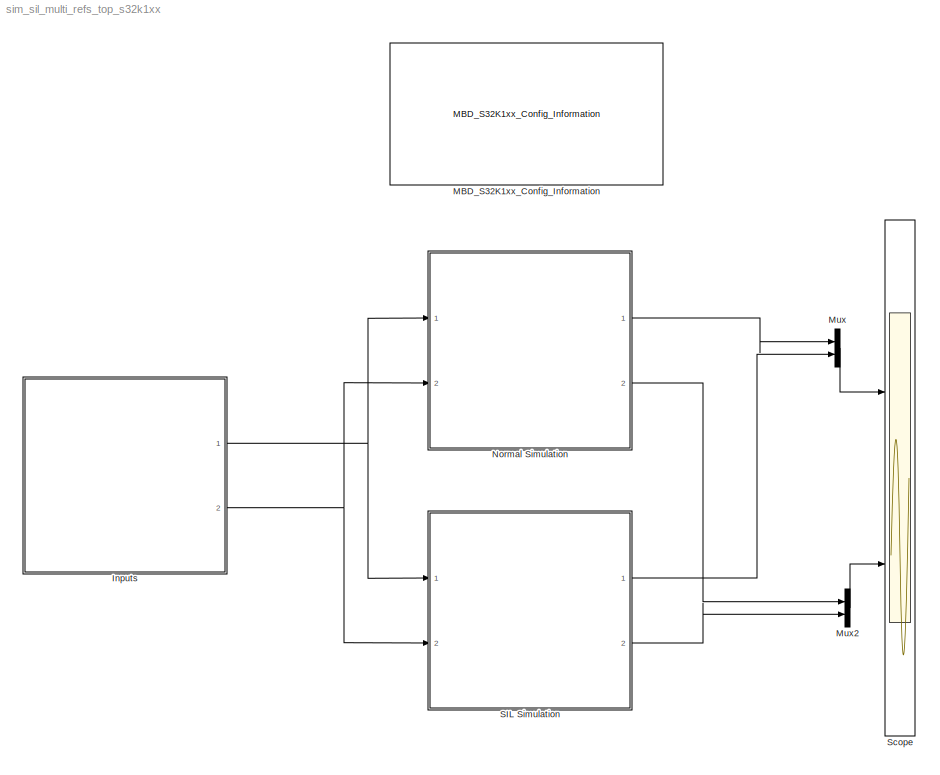
MODEL sim_sil_multi_refs_top_s32k1xx
KIND model
CONFIG InitFcn = mbd_s32k_consistency_checks(bdroot(gcs));
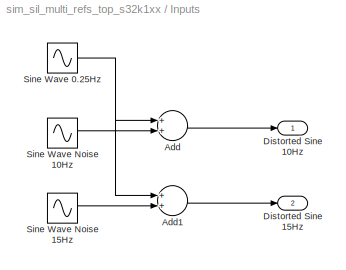
BLOCK [SubSystem] Inputs
  Ports = [0, 2]
  RequestExecContextInheritance = off
  SID = 74
  Variant = off
BLOCK [Sum] Inputs/Add
  InputSameDT = off
  OutDataTypeStr = single
  Ports = [2, 1]
  SID = 24
  SaturateOnIntegerOverflow = off
BLOCK [Sum] Inputs/Add1
  InputSameDT = off
  OutDataTypeStr = single
  Ports = [2, 1]
  SID = 25
  SaturateOnIntegerOverflow = off
BLOCK [Outport] Inputs/Distorted Sine 10Hz
  IconDisplay = Port number
  SID = 75
BLOCK [Outport] Inputs/Distorted Sine 15Hz
  IconDisplay = Port number
  Port = 2
  SID = 76
BLOCK [Sin] Inputs/Sine Wave 0.25Hz
  Amplitude = 0.5
  Frequency = 0.5*pi
  Ports = [0, 1]
  SID = 13
  SampleTime = 0
BLOCK [Sin] Inputs/Sine Wave Noise 10Hz
  Amplitude = 0.1
  Frequency = 10*2*pi
  Ports = [0, 1]
  SID = 14
  SampleTime = 0
BLOCK [Sin] Inputs/Sine Wave Noise 15Hz
  Amplitude = 0.1
  Frequency = 15*2*pi
  Ports = [0, 1]
  SID = 16
  SampleTime = 0
BLOCK [Reference] MBD_S32K1xx_Config_Information  REF=mbd_s32k1xx_ec_toolbox/MBD_S32K1xx_Config_Information
  ADC_PcrCheckEnDis = on
  AMMCLIB_PcrCheckEnDis = on
  CMP_PcrCheckEnDis = on
  CSEc_PcrCheckEnDis = on
  ConfigParams_PcrCheckEnDis = on
  FM_PcrCheckEnDis = on
  FTM_Dual_Edge_Inputs_PcrCheckEnDis = on
  FTM_Hall_Sensor_Inputs_PcrCheckEnDis = on
  FTM_Input_Edge_Inputs_PcrCheckEnDis = on
  FTM_PWM_PcrCheckEnDis = on
  FTM_Quadrature_Inputs_PcrCheckEnDis = on
  FlexCAN_PcrCheckEnDis = on
  FlexIO_PcrCheckEnDis = on
  GPIO_InputPcrCheckEnDis = on
  GPIO_OutputPcrCheckEnDis = on
  LIN_PcrCheckEnDis = on
  LPI2C_PcrCheckEnDis = on
  LPSPI_PcrCheckEnDis = on
  LPTMR_PcrCheckEnDis = on
  LPUART_PcrCheckEnDis = on
  ModelRef_PcrCheckEnDis = on
  PDB0_PcrCheckEnDis = on
  PIT_PcrCheckEnDis = on
  Ports = []
  Profile_PcrCheckEnDis = on
  RTC_PcrCheckEnDis = on
  SBC_PcrCheckEnDis = on
  SID = 11
  SourceBlock = mbd_s32k1xx_ec_toolbox/MBD_S32K1xx_Config_Information
  SourceType = MBDTBX_EC_S32K
  WDOG_PcrCheckEnDis = on
  config_params = []
  disp_str = Target : S32K144-64KB_SRAM\nPackage : 100-pin\nSystem clock : 80 MHz\nXTAL clock : External 8 MHz\nCompiler : GCC\nTarget Type : FLASH\nProcessor-In-Loop : (COM4, 115200, OpenSDA: D)\nStep Tick Interrupt Priority : 15
  ds_import_enable = off
  eDMA_PcrCheckEnDis = on
  gcc_target_assemble_opts = -mthumb -mfloat-abi=hard -mfpu=fpv4-sp-d16 -g
  gcc_target_compile_opts = -mthumb -mfloat-abi=hard -mfpu=fpv4-sp-d16 -O1 -g -gstrict-dwarf
  gcc_target_default_lcf = on
  gcc_target_link_opts = -mthumb -mfloat-abi=hard -mfpu=fpv4-sp-d16
  gcc_target_user_lcf = S32K144_64_flash.ld
  ghs_target_assemble_opts = -cpu=cortexm4f -fpu=vfpv4_d16
  ghs_target_compile_opts = -cpu=cortexm4f -thumb -DARM_MATH_CM4 -fpu=vfpv4_d16 -fsingle -Ogeneral -Wundef -Wimplicit-int -Wshadow -Wtrigraphs --no_commons --gnu_asm -gnu99 -gdwarf-2 -G
  ghs_target_default_lcf = off
  ghs_target_link_opts = -cpu=cortexm4f -thumb -fpu=vfpv4_d16
  ghs_target_user_lcf = S32K144_64_flash.ld
  iar_target_assemble_opts = --cpu Cortex-M4F --thumb --fpu VFPv4_sp
  iar_target_compile_opts = --cpu=Cortex-M4F --thumb --fpu=VFPv4_sp -Ol -e --debug --dlib_config normal
  iar_target_default_lcf = off
  iar_target_link_opts = --no_exceptions --vfe --inline
  iar_target_user_lcf = S32K144_64_flash.icf
  mbdt_ver = 0
  mcu_steptick_prio = 15
  mcu_steptick_timer = LPIT Channel 0
  mcu_system_clock_freq = 80
  mcu_target_name = S32K144
  mcu_target_package = 100-LQFP
  mcu_target_sram_size = 64KB
  mcu_xtal_freq = External 8
  pil_download_enable = on
  pil_download_rate = 57600
  pil_opensda_drive = Custom
  pil_opensda_drive_custom = D
  pil_uart_instance = 1
  pil_uart_rx = PTC6: [LPUART1_RX | Receive]
  pil_uart_tx = PTC7: [LPUART1_TX | Transmit]
  rbl_com_port = Custom
  rbl_com_port_custom = COM1
  rbl_download_enable = off
  rbl_download_interface = OpenSDA
  rbl_restart_request = off
  rbl_start_delay = 5000000
  target_compiler = GCC
  target_memory = FLASH
BLOCK [Mux] Mux
  DisplayOption = bar
  Inputs = 2
  Ports = [2, 1]
  SID = 79
BLOCK [Mux] Mux2
  DisplayOption = bar
  Inputs = 2
  Ports = [2, 1]
  SID = 81
BLOCK [ModelReference] Normal Simulation
  ModelNameDialog = sim_sil_multi_refs_target_s32k1xx.mdl
  ModelReferenceVersion = 1.263
  Ports = [2, 2]
  SID = 7
  Variant = off
BLOCK [ModelReference] SIL Simulation
  ModelNameDialog = sim_sil_multi_refs_target_s32k1xx.mdl
  ModelReferenceVersion = 1.263
  Ports = [2, 2]
  SID = 73
  Variant = off
BLOCK [Scope] Scope
  NumInputPorts = 2
  Ports = [2]
  SID = 3
  ScopeSpecificationString = Simulink.scopes.TimeScopeBlockCfg('CurrentConfiguration', extmgr.ConfigurationSet(extmgr.Configuration('Core','General UI',true),extmgr.Configuration('Core','Source UI',true),extmgr.Configuration('Sources','WiredSimulink',true,'DataLoggingSaveFormat','StructureWithTime','DataLoggingLimitDataPoints',true,'DataLoggingDecimation','1','DataLoggingDecimateData',true),extmgr.Configuration('Visuals','Tim...<+2356ch>
LINE Inputs/Add1:1 -> Inputs/Distorted Sine 15Hz:1
LINE Inputs/Add:1 -> Inputs/Distorted Sine 10Hz:1
NET Inputs/Sine Wave 0.25Hz:1 -> Inputs/Add1:1, Inputs/Add:1
LINE Inputs/Sine Wave Noise 10Hz:1 -> Inputs/Add:2
LINE Inputs/Sine Wave Noise 15Hz:1 -> Inputs/Add1:2
NET Inputs:1 -> Normal Simulation:1, SIL Simulation:1
NET Inputs:2 -> Normal Simulation:2, SIL Simulation:2
LINE Mux2:1 -> Scope:2
LINE Mux:1 -> Scope:1
LINE Normal Simulation:1 -> Mux:1
LINE Normal Simulation:2 -> Mux2:1
LINE SIL Simulation:1 -> Mux:2
LINE SIL Simulation:2 -> Mux2:2
note: NET lines group one-source signal fan-out (src -> all destinations, sorted); 1:1 wires keep LINE
